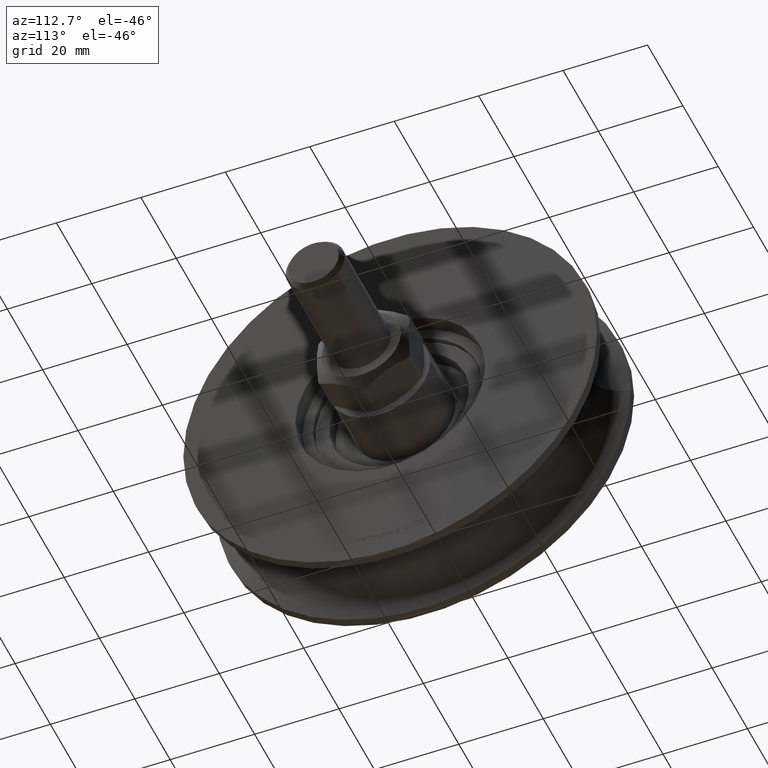
[diagram: clean part render]
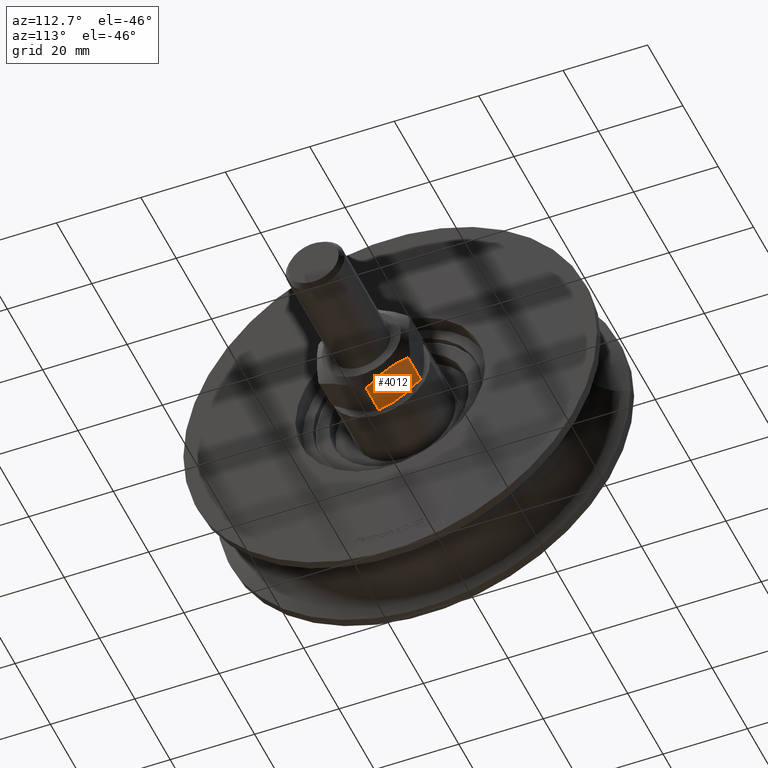
[diagram: same view with one face highlighted and labeled with its STEP entity id]
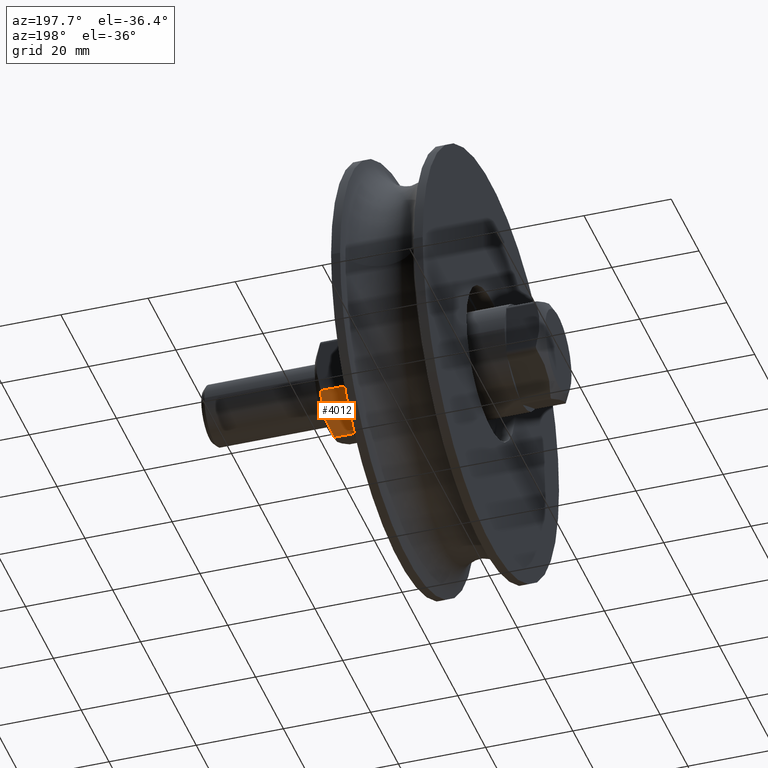
[diagram: same view with one face highlighted and labeled with its STEP entity id]
A machine part, auxiliary view. The second image highlights one B-rep face of the part: STEP entity #4012.
A second angle (auxiliary view) of the same face is appended — the face is thin or edge-on in the first view.
In plain terms, the highlighted planar face has unit normal (-0, -0.5, 0.866).
Its self-contained STEP definition (entity closure, byte-faithful):
#266 = CARTESIAN_POINT ( 'NONE',  ( 10.38599579670281337, 9.482066780805308071, 3.760927592913923423 ) ) ;
#439 = EDGE_CURVE ( 'NONE', #2742, #2686, #6356, .T. ) ;
#456 = EDGE_CURVE ( 'NONE', #12819, #1651, #10864, .T. ) ;
#1019 = CARTESIAN_POINT ( 'NONE',  ( 11.80200942286425914, 1.401500228138188753, 1.308320048192456175 ) ) ;
#1234 = CARTESIAN_POINT ( 'NONE',  ( 8.457416494154724518, 9.467544749617196942, 7.101324931352966274 ) ) ;
#1443 = DIRECTION ( 'NONE',  ( 0.000000000000000000, -1.000000000000000000, 0.000000000000000000 ) ) ;
#1651 = VERTEX_POINT ( 'NONE', #6931 ) ;
#1890 = DIRECTION ( 'NONE',  ( -0.8660254037844388186, 0.000000000000000000, -0.4999999999999998335 ) ) ;
#1932 = CARTESIAN_POINT ( 'NONE',  ( 8.928437306034254561, 0.8417817293116001132, 6.285492953755277057 ) ) ;
#2014 = CARTESIAN_POINT ( 'NONE',  ( 6.567359312028259843, 1.651713245803267727, 10.37500000000646949 ) ) ;
#2018 = CARTESIAN_POINT ( 'NONE',  ( 11.33150797387730080, 1.197382245693979552, 2.123252462872649016 ) ) ;
#2150 = CARTESIAN_POINT ( 'NONE',  ( 6.567359312031994634, 8.748286754198733917, 10.37500000000000000 ) ) ;
#2305 = AXIS2_PLACEMENT_3D ( 'NONE', #11462, #1890, #9327 ) ;
#2315 = CARTESIAN_POINT ( 'NONE',  ( 12.26869322028328391, 8.748286754196731962, 0.4999999999935264561 ) ) ;
#2686 = VERTEX_POINT ( 'NONE', #2014 ) ;
#2742 = VERTEX_POINT ( 'NONE', #2150 ) ;
#2777 = VECTOR ( 'NONE', #6695, 1000.000000000000000 ) ;
#3028 = CARTESIAN_POINT ( 'NONE',  ( 8.450056735608727720, 0.9179332191946890651, 7.114072407086071692 ) ) ;
#3357 = CARTESIAN_POINT ( 'NONE',  ( 7.504544558434241175, 9.202617754306016806, 8.751747537127352317 ) ) ;
#4012 = ADVANCED_FACE ( 'NONE', ( #4580 ), #8227, .F. ) ;
#4580 = FACE_OUTER_BOUND ( 'NONE', #12257, .T. ) ;
#5166 = CARTESIAN_POINT ( 'NONE',  ( 12.26869322027954823, 1.651713245801264440, 0.4999999999999963363 ) ) ;
#5466 = CARTESIAN_POINT ( 'NONE',  ( 6.567359312031994634, 8.748286754198733917, 10.37500000000000000 ) ) ;
#5626 = CARTESIAN_POINT ( 'NONE',  ( 8.938780974768475218, 9.540500467507024851, 6.267577193970943483 ) ) ;
#6356 = LINE ( 'NONE', #13051, #9211 ) ;
#6666 = ORIENTED_EDGE ( 'NONE', *, *, #439, .T. ) ;
#6695 = DIRECTION ( 'NONE',  ( -0.000000000000000000, 1.000000000000000000, -0.000000000000000000 ) ) ;
#6931 = CARTESIAN_POINT ( 'NONE',  ( 12.26869322028328391, 8.748286754196731962, 0.4999999999935264561 ) ) ;
#7574 = CARTESIAN_POINT ( 'NONE',  ( 11.80278453975530795, 8.998084192111019064, 1.306977506355357255 ) ) ;
#8214 = B_SPLINE_CURVE_WITH_KNOTS ( 'NONE', 3,
 ( #13649, #9371, #8437, #3028, #1932, #10435, #11588, #11459, #11498, #2018, #1019, #5166 ),
 .UNSPECIFIED., .F., .F.,
 ( 4, 2, 2, 2, 2, 4 ),
 ( 0.0005945842080459530759, 0.003468188116784422931, 0.006341792025522895171, 0.007778593979892129556, 0.009215395934261360472, 0.01208899984299982577 ),
 .UNSPECIFIED. ) ;
#8227 = PLANE ( 'NONE',  #2305 ) ;
#8259 = B_SPLINE_CURVE_WITH_KNOTS ( 'NONE', 3,
 ( #2315, #7574, #12936, #266, #11839, #12986, #5626, #1234, #9703, #3357, #10774, #5466 ),
 .UNSPECIFIED., .F., .F.,
 ( 4, 2, 2, 2, 2, 4 ),
 ( 0.0005945842080459534012, 0.003468188116784421630, 0.006341792025522889967, 0.007778593979892125219, 0.009215395934261360472, 0.01208899984299982924 ),
 .UNSPECIFIED. ) ;
#8437 = CARTESIAN_POINT ( 'NONE',  ( 7.502497593433057332, 1.198355497390708457, 8.755292984510717247 ) ) ;
#9211 = VECTOR ( 'NONE', #1443, 1000.000000000000000 ) ;
#9327 = DIRECTION ( 'NONE',  ( -0.4999999999999997780, 0.000000000000000000, 0.8660254037844387076 ) ) ;
#9343 = EDGE_CURVE ( 'NONE', #2686, #12819, #8214, .T. ) ;
#9371 = CARTESIAN_POINT ( 'NONE',  ( 7.033267992556233139, 1.401915807888984400, 9.568022493644637194 ) ) ;
#9703 = CARTESIAN_POINT ( 'NONE',  ( 8.218208454635430371, 9.413267116138834822, 7.515645409379335895 ) ) ;
#10435 = CARTESIAN_POINT ( 'NONE',  ( 9.654148386125656955, 0.8408907253194727316, 5.028524491421286768 ) ) ;
#10774 = CARTESIAN_POINT ( 'NONE',  ( 7.034043109447279285, 8.998499771861812491, 9.566679951807543603 ) ) ;
#10864 = LINE ( 'NONE', #10937, #2777 ) ;
#10937 = CARTESIAN_POINT ( 'NONE',  ( 12.26869322027954645, 10.40000000000000036, 0.4999999999999987232 ) ) ;
#10998 = ORIENTED_EDGE ( 'NONE', *, *, #11738, .T. ) ;
#11459 = CARTESIAN_POINT ( 'NONE',  ( 10.37863603815681657, 0.9324552503827988614, 3.773675068647031061 ) ) ;
#11462 = CARTESIAN_POINT ( 'NONE',  ( 6.278684177437182434, 10.40000000000000036, 10.87500000000000000 ) ) ;
#11498 = CARTESIAN_POINT ( 'NONE',  ( 10.61784407767611427, 0.9867328838611665320, 3.359354590620665437 ) ) ;
#11588 = CARTESIAN_POINT ( 'NONE',  ( 9.897271557543064091, 0.8594995324929729508, 4.607422806029052964 ) ) ;
#11738 = EDGE_CURVE ( 'NONE', #1651, #2742, #8259, .T. ) ;
#11753 = ORIENTED_EDGE ( 'NONE', *, *, #9343, .T. ) ;
#11792 = CARTESIAN_POINT ( 'NONE',  ( 12.26869322027954823, 1.651713245801264440, 0.4999999999999963363 ) ) ;
#11839 = CARTESIAN_POINT ( 'NONE',  ( 9.907615226277288301, 9.558218270688401574, 4.589507046244722055 ) ) ;
#12257 = EDGE_LOOP ( 'NONE', ( #11753, #13273, #10998, #6666 ) ) ;
#12819 = VERTEX_POINT ( 'NONE', #11792 ) ;
#12936 = CARTESIAN_POINT ( 'NONE',  ( 11.33355493887848553, 9.201644502609289233, 2.119707015489278756 ) ) ;
#12986 = CARTESIAN_POINT ( 'NONE',  ( 9.181904146185887683, 9.559109274680528401, 5.846475508578710567 ) ) ;
#13051 = CARTESIAN_POINT ( 'NONE',  ( 6.567359312031995522, 10.40000000000000036, 10.37499999999999822 ) ) ;
#13273 = ORIENTED_EDGE ( 'NONE', *, *, #456, .T. ) ;
#13649 = CARTESIAN_POINT ( 'NONE',  ( 6.567359312028259843, 1.651713245803267727, 10.37500000000646949 ) ) ;